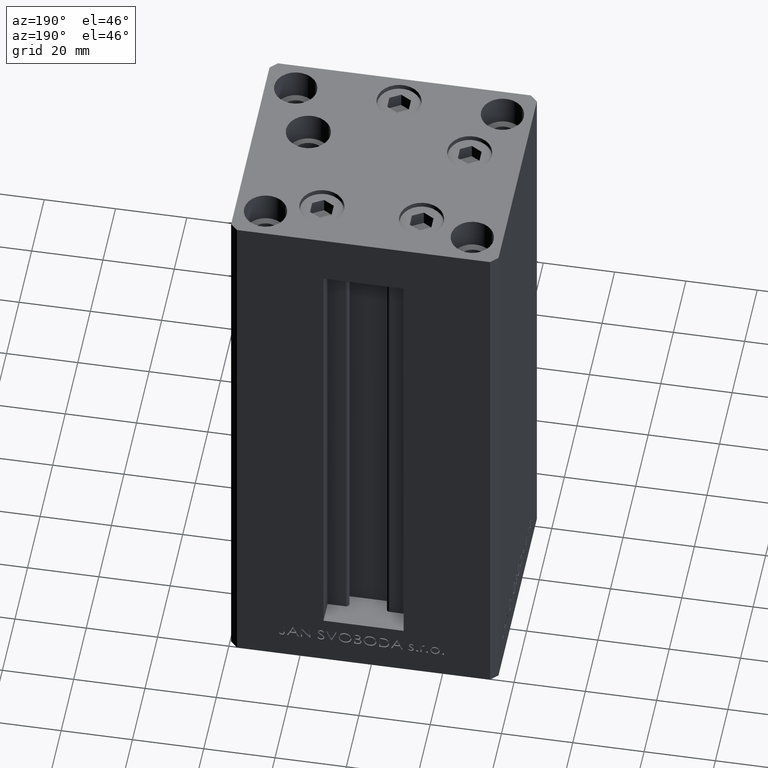
[diagram: clean part render]
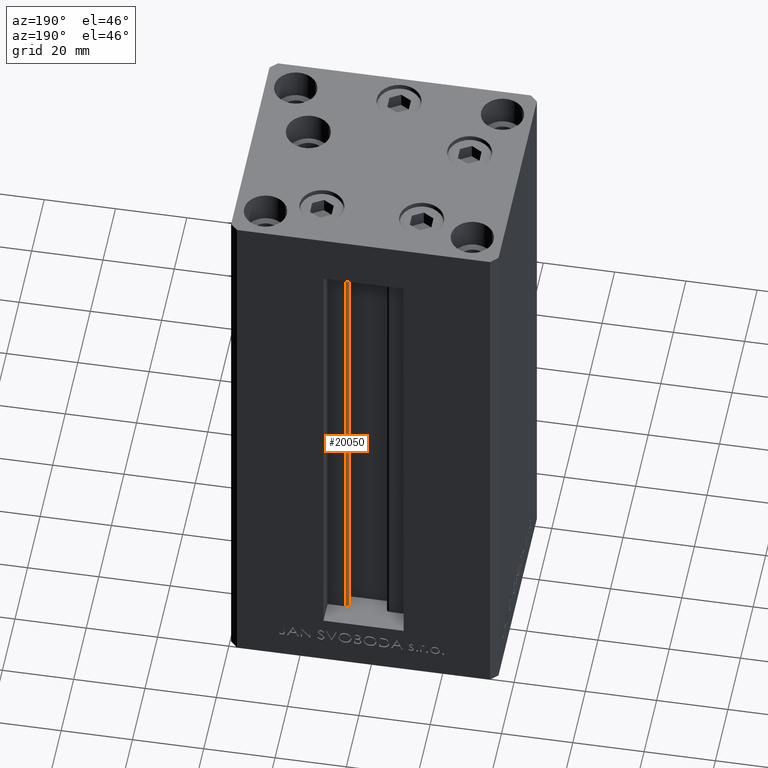
[diagram: same view with one face highlighted and labeled with its STEP entity id]
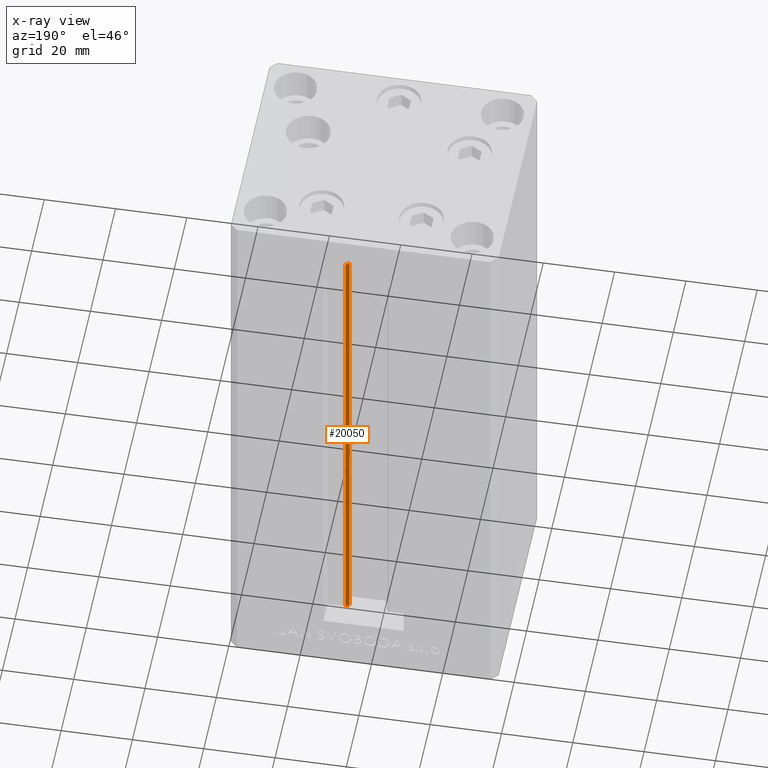
[diagram: x-ray of the same camera — body ghosted, the highlighted face saturated]
A machine part, auxiliary view. The second image highlights one B-rep face of the part: STEP entity #20050.
The next image is the same camera in x-ray: the body ghosted, the highlighted face saturated — about 0% of this face is hidden behind the body in this view.
In plain terms, the highlighted cylindrical surface (edge-blend (fillet) strip) has radius 0.9333 mm, axis along (0, 0, 1).
Its self-contained STEP definition (entity closure, byte-faithful):
#1512 = DIRECTION ( 'NONE',  ( 1.000000000000000000, 0.000000000000000000, 0.000000000000000000 ) ) ;
#2462 = ORIENTED_EDGE ( 'NONE', *, *, #21304, .F. ) ;
#2783 = CARTESIAN_POINT ( 'NONE',  ( 5.375042956467947164, 24.59999999999899245, 0.000000000000000000 ) ) ;
#3041 = EDGE_CURVE ( 'NONE', #7567, #24374, #24816, .T. ) ;
#3727 = VERTEX_POINT ( 'NONE', #25319 ) ;
#4796 = AXIS2_PLACEMENT_3D ( 'NONE', #12331, #20489, #16524 ) ;
#5468 = CARTESIAN_POINT ( 'NONE',  ( 6.183333333334001480, 25.06666666666599141, 0.000000000000000000 ) ) ;
#7180 = EDGE_CURVE ( 'NONE', #7567, #24087, #20618, .T. ) ;
#7567 = VERTEX_POINT ( 'NONE', #2783 ) ;
#8207 = VECTOR ( 'NONE', #31662, 1000.000000000000000 ) ;
#12331 = CARTESIAN_POINT ( 'NONE',  ( 6.183333333334001480, 25.06666666666599141, 0.000000000000000000 ) ) ;
#12500 = ORIENTED_EDGE ( 'NONE', *, *, #3041, .T. ) ;
#15826 = LINE ( 'NONE', #16545, #8207 ) ;
#16125 = CARTESIAN_POINT ( 'NONE',  ( 6.183333333334001480, 25.06666666666599141, 136.0000000000000000 ) ) ;
#16524 = DIRECTION ( 'NONE',  ( 1.000000000000000000, 0.000000000000000000, 0.000000000000000000 ) ) ;
#16545 = CARTESIAN_POINT ( 'NONE',  ( 6.183333333334001480, 25.99999999999999289, 0.000000000000000000 ) ) ;
#16847 = DIRECTION ( 'NONE',  ( 1.000000000000000000, 0.000000000000000000, 0.000000000000000000 ) ) ;
#20050 = ADVANCED_FACE ( 'NONE', ( #31717 ), #46775, .T. ) ;
#20489 = DIRECTION ( 'NONE',  ( -0.000000000000000000, -0.000000000000000000, -1.000000000000000000 ) ) ;
#20618 = CIRCLE ( 'NONE', #4796, 0.9333333333340008142 ) ;
#21304 = EDGE_CURVE ( 'NONE', #24087, #3727, #15826, .T. ) ;
#21328 = CARTESIAN_POINT ( 'NONE',  ( 5.375042956467947164, 24.59999999999899245, 0.000000000000000000 ) ) ;
#22057 = EDGE_CURVE ( 'NONE', #24374, #3727, #31066, .T. ) ;
#22644 = EDGE_LOOP ( 'NONE', ( #2462, #28607, #12500, #33702 ) ) ;
#22982 = VECTOR ( 'NONE', #40618, 1000.000000000000000 ) ;
#24087 = VERTEX_POINT ( 'NONE', #31639 ) ;
#24374 = VERTEX_POINT ( 'NONE', #48649 ) ;
#24746 = AXIS2_PLACEMENT_3D ( 'NONE', #16125, #31726, #1512 ) ;
#24816 = LINE ( 'NONE', #21328, #22982 ) ;
#25319 = CARTESIAN_POINT ( 'NONE',  ( 6.183333333334001480, 25.99999999999999289, 136.0000000000000000 ) ) ;
#28006 = DIRECTION ( 'NONE',  ( -0.000000000000000000, -0.000000000000000000, 1.000000000000000000 ) ) ;
#28607 = ORIENTED_EDGE ( 'NONE', *, *, #7180, .F. ) ;
#31066 = CIRCLE ( 'NONE', #24746, 0.9333333333340008142 ) ;
#31639 = CARTESIAN_POINT ( 'NONE',  ( 6.183333333334001480, 25.99999999999999289, 0.000000000000000000 ) ) ;
#31662 = DIRECTION ( 'NONE',  ( -0.000000000000000000, -0.000000000000000000, 1.000000000000000000 ) ) ;
#31717 = FACE_OUTER_BOUND ( 'NONE', #22644, .T. ) ;
#31726 = DIRECTION ( 'NONE',  ( 0.000000000000000000, 0.000000000000000000, -1.000000000000000000 ) ) ;
#33702 = ORIENTED_EDGE ( 'NONE', *, *, #22057, .T. ) ;
#36644 = AXIS2_PLACEMENT_3D ( 'NONE', #5468, #28006, #16847 ) ;
#40618 = DIRECTION ( 'NONE',  ( -0.000000000000000000, -0.000000000000000000, 1.000000000000000000 ) ) ;
#46775 = CYLINDRICAL_SURFACE ( 'NONE', #36644, 0.9333333333340008142 ) ;
#48649 = CARTESIAN_POINT ( 'NONE',  ( 5.375042956467948052, 24.59999999999899245, 136.0000000000000000 ) ) ;